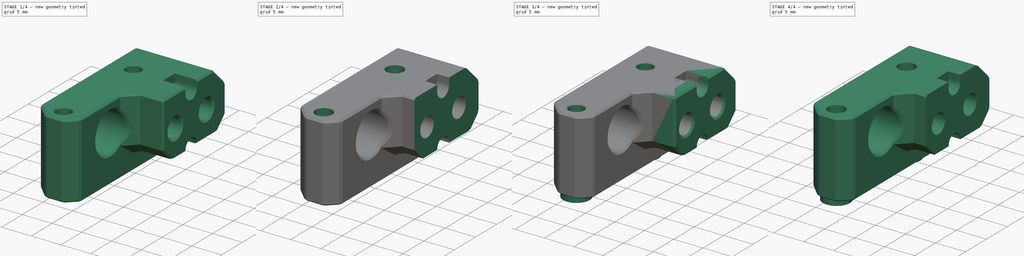
[diagram: build sequence overview — one tinted view per stage of 4, left to right]
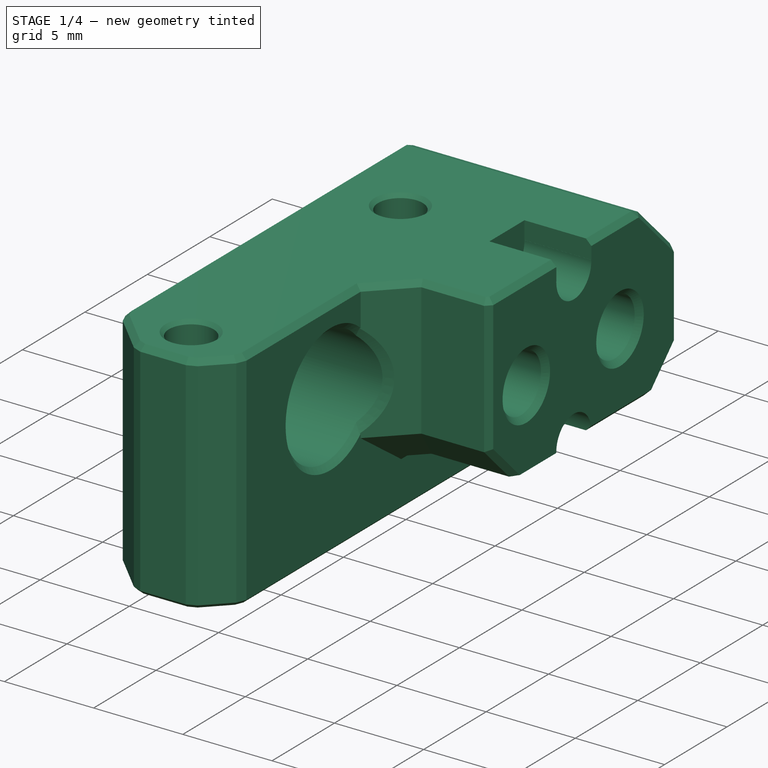
[diagram: stage 1 of 4 — iso view after this stage's code; geometry added in this stage tinted green]
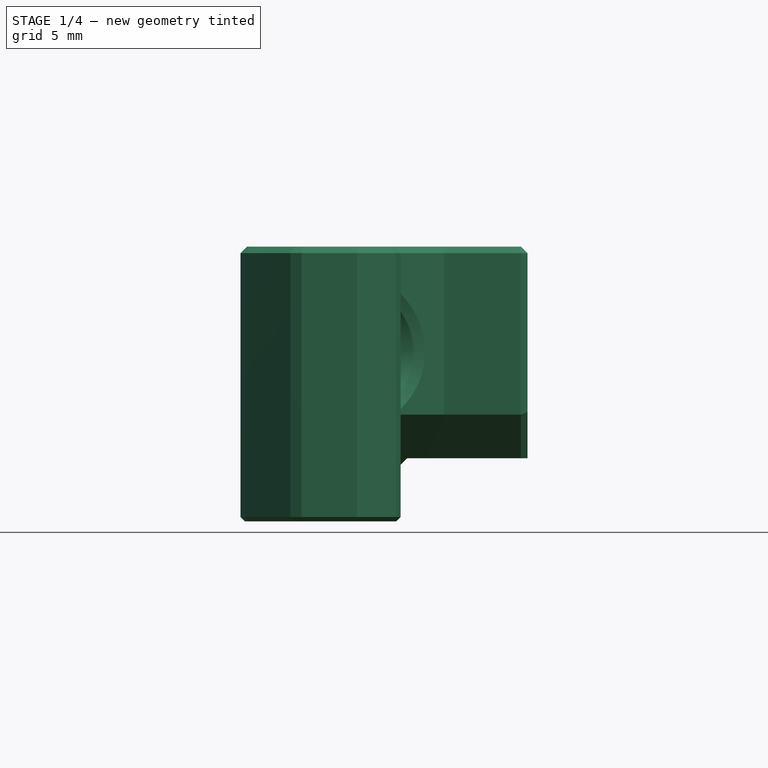
[diagram: stage 1 of 4 — front view after this stage's code; geometry added in this stage tinted green]
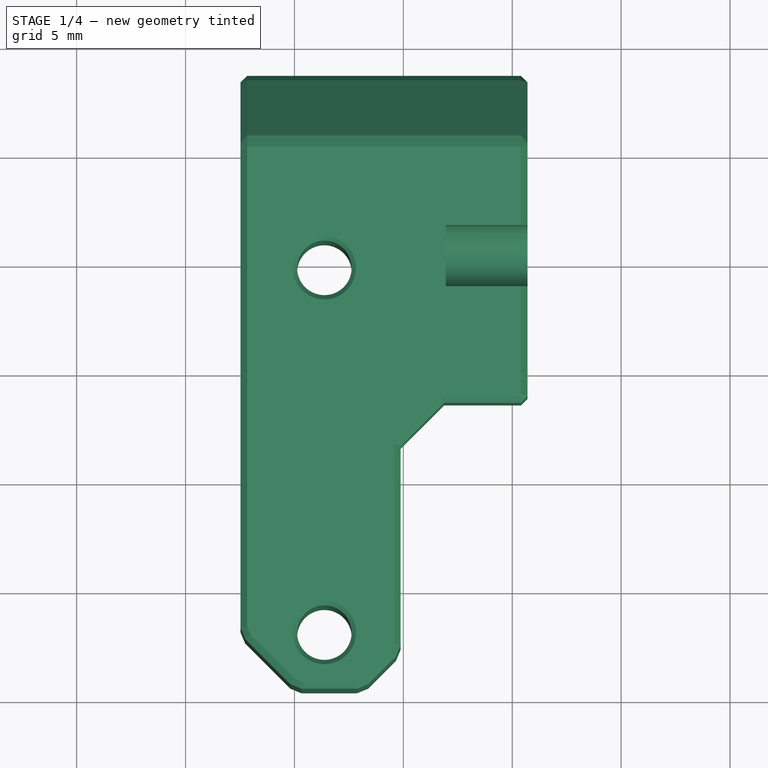
[diagram: stage 1 of 4 — top view after this stage's code; geometry added in this stage tinted green]
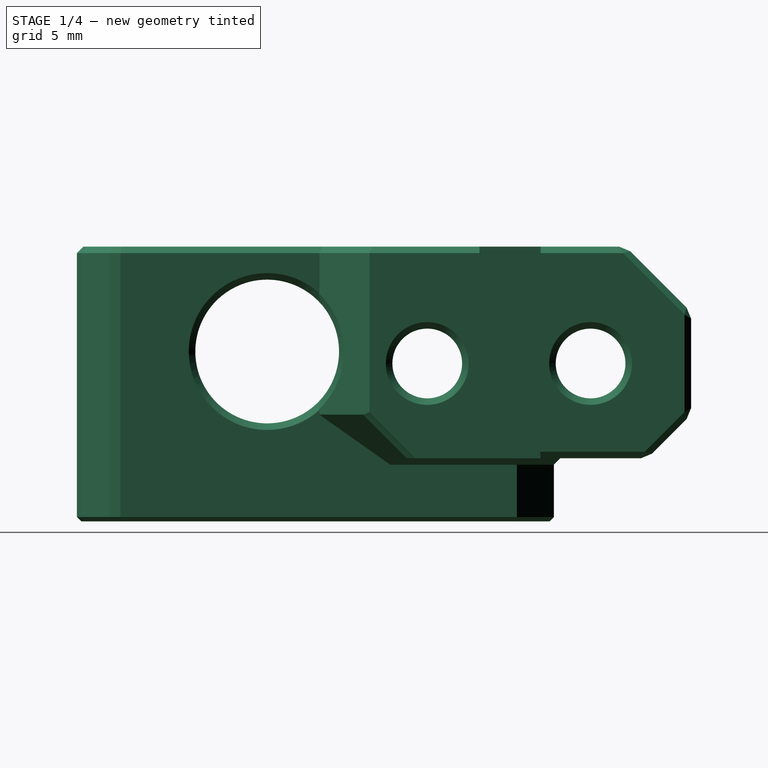
[diagram: stage 1 of 4 — right view after this stage's code; geometry added in this stage tinted green]
FCSTD DOCUMENT  (FreeCAD 1.1R40303 (Git))
Label: btt microprobe
License: All rights reserved
LicenseURL: http://en.wikipedia.org/wiki/All_rights_reserved
objects: Sketcher::SketchObject×7, PartDesign::Pocket×6, Part::Feature×2, PartDesign::FeatureBase×2, PartDesign::Plane×2, PartDesign::Body×2, App::Point×2, PartDesign::Pad×1
note: 45 computed .brp shape members not serialized (recipe doc carries the construction recipe); baked Part::Feature solids carry a one-line shape summary decoded from their .brp

FEATURE [PartDesign::Body] Body
  AllowCompound = false
  BaseFeature = -> CR_K1_C_MAX_BIQU_MicroProbe_v2_Adapter_v5_by_StarCom_Lab
  Group = -> [BaseFeature,DatumPlane,Sketch,Pocket,Sketch001,Pocket001,Sketch002,Pocket002]
  Origin = -> Origin
  Tip = -> Pocket002
FEATURE [App::Point] Origin001  label="Origin"
  Role = Origin
FEATURE [Part::Feature] CR_K1_C_MAX_BIQU_MicroProbe_v2_Adapter_v5_by_StarCom_Lab001
  shape: bbox 13.19 x 28.21 x 12.63 mm, 112 faces (baked)
FEATURE [PartDesign::FeatureBase] BaseFeature001
  BaseFeature = -> CR_K1_C_MAX_BIQU_MicroProbe_v2_Adapter_v5_by_StarCom_Lab001
  Suppressed = false
FEATURE [PartDesign::Plane] DatumPlane001
  AttachmentSupport = -> [BaseFeature001]
  Length = 78.5067
  MapMode = 5
  Placement = pos=(-24.3,0,-3.67e-14) rot=(0.57735,0.57735,0.57735;2.0944rad)
  ResizeMode = 0
  Width = 434.823
FEATURE [App::Point] Origin003
  Role = Origin
FEATURE [Sketcher::SketchObject] Sketch004
  ArcFitTolerance = 0
  AttachmentSupport = -> [DatumPlane001]
  ExternalGeometry = -> [BaseFeature001]
  ExternalTypes = [0]
  FullyConstrained = false
  MakeInternals = false
  MapMode = 5
  Placement = pos=(-24.3,0,-3.67e-14) rot=(0.57735,0.57735,0.57735;2.0944rad)
  sketch-geometry (6):
    g0: ArcOfCircle CenterX=-4.7 CenterY=380.25 CenterZ=0 NormalX=0 NormalY=0 NormalZ=1 AngleXU=0 Radius=1.4 StartAngle=3.09433 EndAngle=6.33045
    g1: Circle CenterX=-4.7 CenterY=371.65 CenterZ=0 NormalX=0 NormalY=0 NormalZ=1 AngleXU=0 Radius=1.4
    g2: LineSegment StartX=-3.30156 StartY=380.316 StartZ=0 EndX=-3.29661 EndY=380.316 EndZ=0
    g3: LineSegment StartX=-3.29661 StartY=380.316 StartZ=0 EndX=-3.29661 EndY=381.754 EndZ=0
    g4: LineSegment StartX=-3.29661 StartY=381.754 StartZ=0 EndX=-6.09844 EndY=381.754 EndZ=0
    g5: LineSegment StartX=-6.09844 StartY=381.754 StartZ=0 EndX=-6.09844 EndY=380.316 EndZ=0
  constraints (12):
    c: Tangent(g1,g-4) = -1.5708
    c: Coincident(g2,g3)
    c: Coincident(g3,g4)
    c: Coincident(g4,g5)
    c: Horizontal(g2)
    c: Horizontal(g4)
    c: Vertical(g3)
    c: Vertical(g5)
    c: Coincident(g5,g-3)
    c: Tangent(g0,g-3) = -1.5708
    c: Coincident(g0,g5)
    c: PointOnObject(g2,g-3)
FEATURE [PartDesign::Pocket] Pocket003
  BaseFeature = -> BaseFeature001
  Direction = (-1,0,-1.3e-15)
  Length = 3.75
  Length2 = 5
  Profile = -> Sketch004
  ReferenceAxis = -> Sketch004 [N_Axis]
  Suppressed = false
  Type = 0
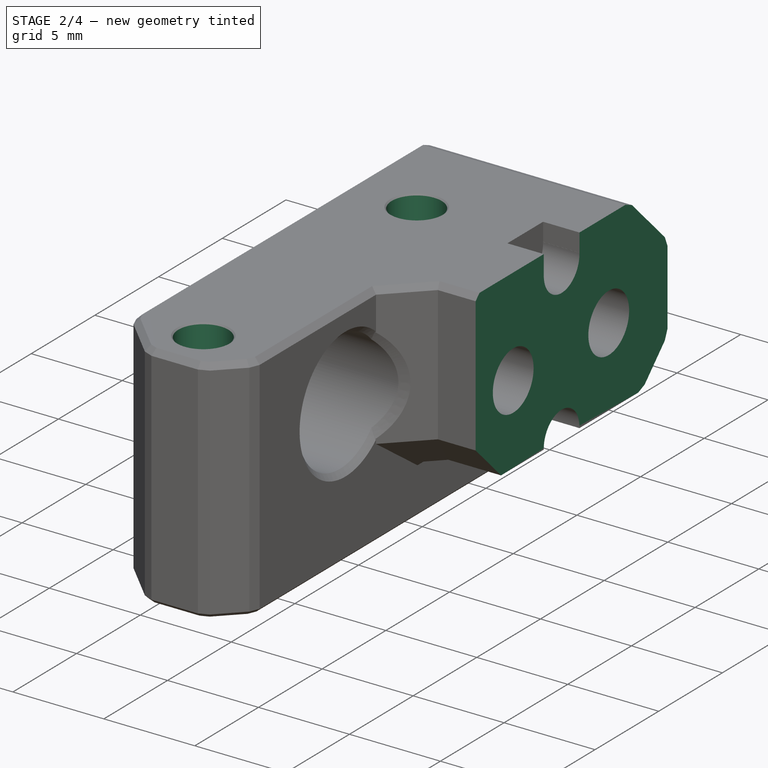
[diagram: stage 2 of 4 — iso view after this stage's code; geometry added in this stage tinted green]
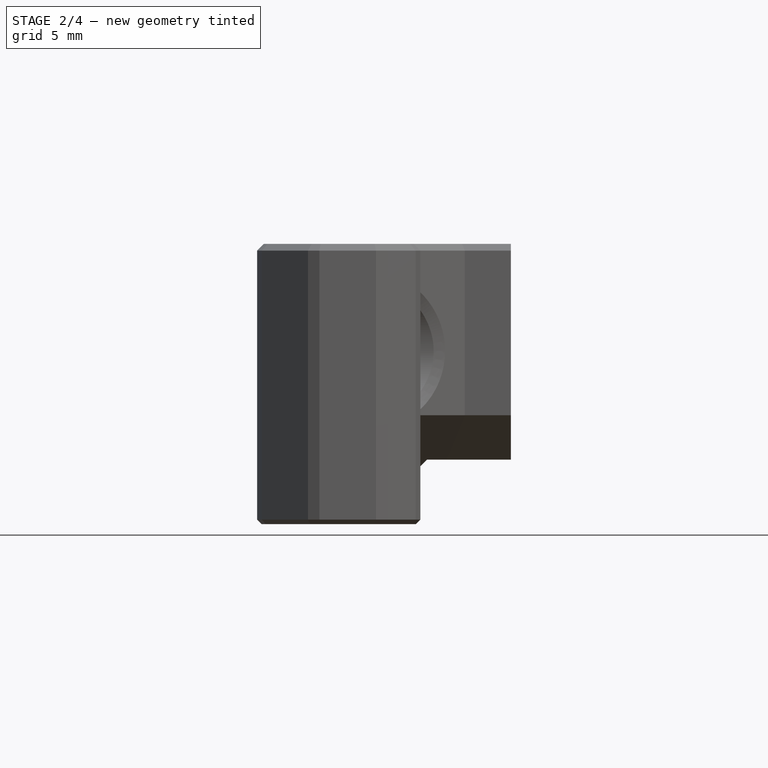
[diagram: stage 2 of 4 — front view after this stage's code; geometry added in this stage tinted green]
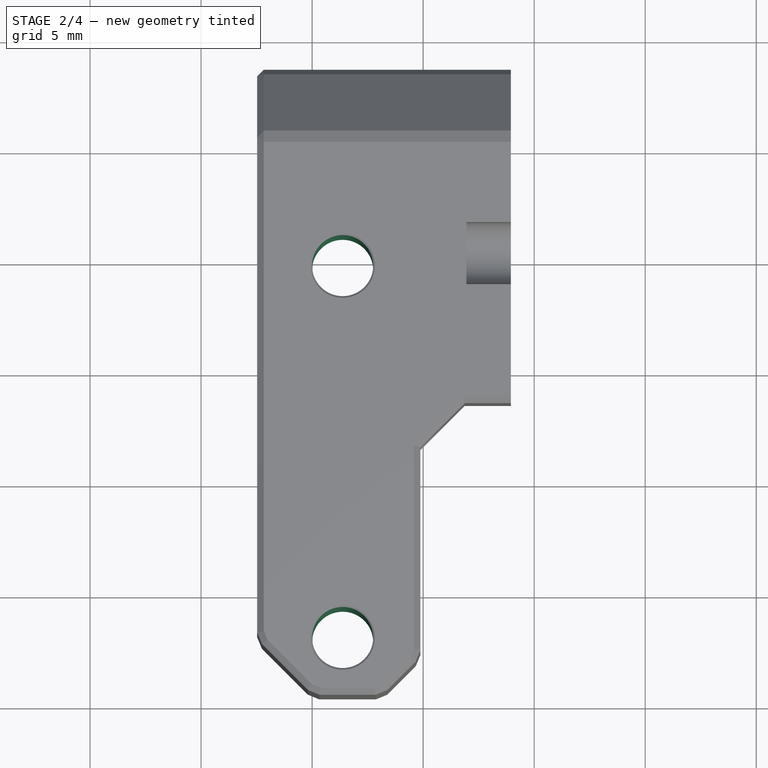
[diagram: stage 2 of 4 — top view after this stage's code; geometry added in this stage tinted green]
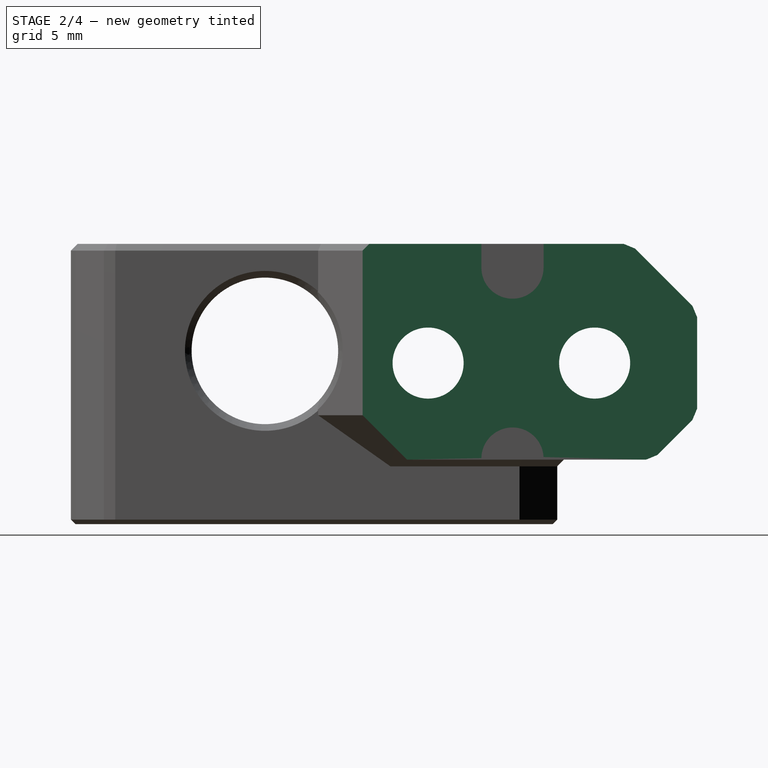
[diagram: stage 2 of 4 — right view after this stage's code; geometry added in this stage tinted green]
FEATURE [Sketcher::SketchObject] Sketch005
  ArcFitTolerance = 0
  AttachmentSupport = -> [Pocket003]
  ExternalGeometry = -> [Pocket003]
  ExternalTypes = [0]
  FullyConstrained = true
  MakeInternals = false
  MapMode = 5
  Placement = pos=(0,1.0139e-12,368.7) rot=(1,0,0;3.14159rad)
  sketch-geometry (2):
    g0: Circle CenterX=-33.6247 CenterY=5.26071 CenterZ=0 NormalX=0 NormalY=0 NormalZ=1 AngleXU=0 Radius=1.375
    g1: Circle CenterX=-33.6247 CenterY=22.0107 CenterZ=0 NormalX=0 NormalY=0 NormalZ=1 AngleXU=0 Radius=1.375
  constraints (4):
    c: Coincident(g0,g-4)
    c: Coincident(g1,g-3)
    c: Equal(g1,g0)
    c: Diameter(g1) = 2.75
FEATURE [PartDesign::Pocket] Pocket004
  BaseFeature = -> Pocket003
  Direction = (0,2.8e-15,1)
  Length = 0.5
  Length2 = 5
  Profile = -> Sketch005
  ReferenceAxis = -> Sketch005 [N_Axis]
  Suppressed = false
  Type = 1
FEATURE [Sketcher::SketchObject] Sketch006
  ArcFitTolerance = 0
  AttachmentSupport = -> [Pocket004]
  ExternalTypes = [0]
  FullyConstrained = false
  MakeInternals = false
  MapMode = 5
  Placement = pos=(-24.3,0,-3.67e-14) rot=(0.57735,0.57735,0.57735;2.0944rad)
  sketch-geometry (4):
    g0: LineSegment StartX=-14.4128 StartY=382.015 StartZ=0 EndX=-14.4128 EndY=369.818 EndZ=0
    g1: LineSegment StartX=-14.4128 StartY=369.818 StartZ=0 EndX=5.4014 EndY=369.818 EndZ=0
    g2: LineSegment StartX=5.4014 StartY=369.818 StartZ=0 EndX=5.4014 EndY=382.015 EndZ=0
    g3: LineSegment StartX=5.4014 StartY=382.015 StartZ=0 EndX=-14.4128 EndY=382.015 EndZ=0
  constraints (8):
    c: Coincident(g0,g1)
    c: Coincident(g1,g2)
    c: Coincident(g2,g3)
    c: Coincident(g3,g0)
    c: Vertical(g0)
    c: Vertical(g2)
    c: Horizontal(g1)
    c: Horizontal(g3)
FEATURE [PartDesign::Pocket] Pocket005
  BaseFeature = -> Pocket004
  Direction = (-1,-1e-16,-1.4e-15)
  Length = 1.75
  Length2 = 5
  Profile = -> Sketch006
  ReferenceAxis = -> Sketch006 [N_Axis]
  Suppressed = false
  Type = 0
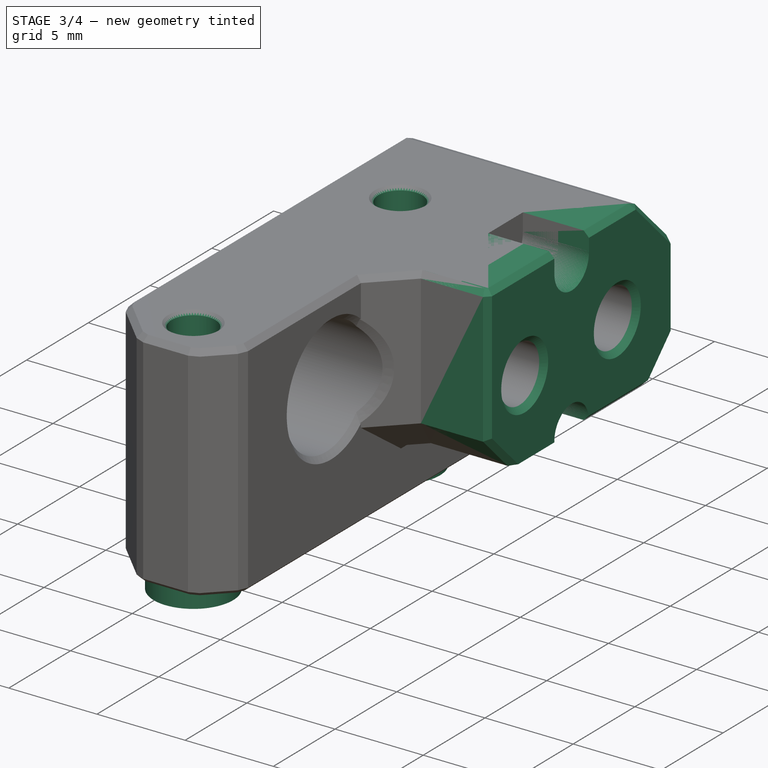
[diagram: stage 3 of 4 — iso view after this stage's code; geometry added in this stage tinted green]
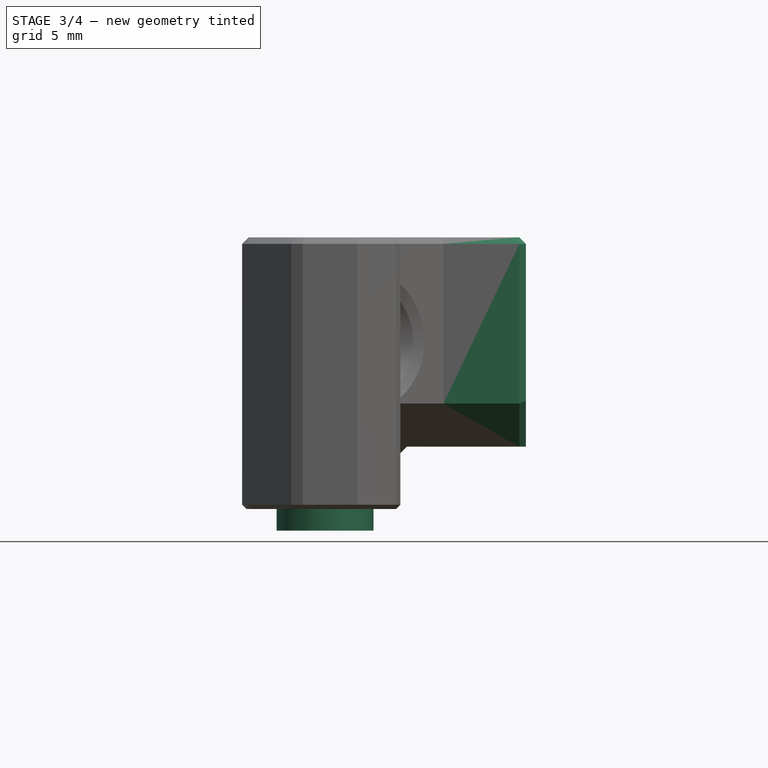
[diagram: stage 3 of 4 — front view after this stage's code; geometry added in this stage tinted green]
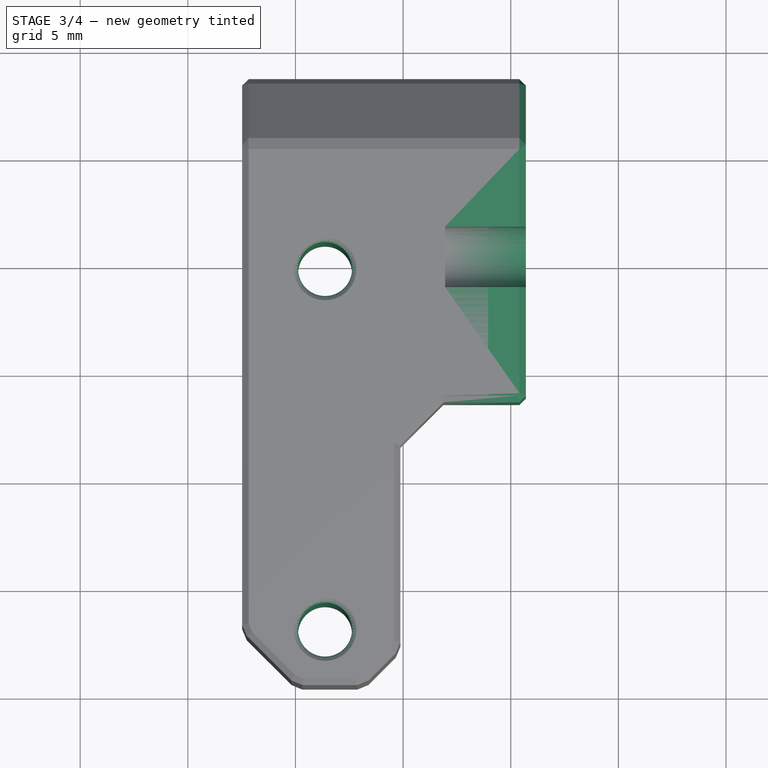
[diagram: stage 3 of 4 — top view after this stage's code; geometry added in this stage tinted green]
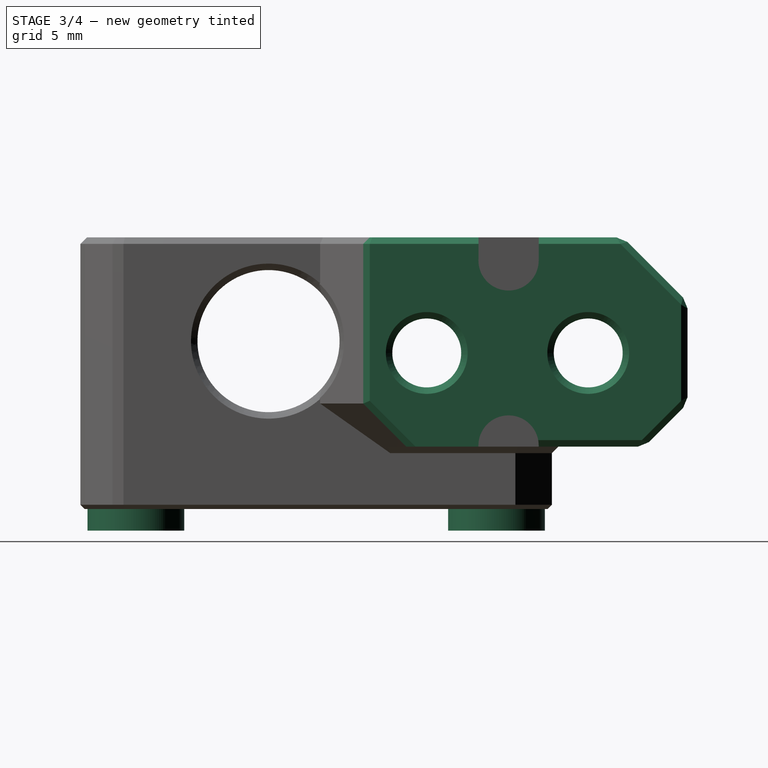
[diagram: stage 3 of 4 — right view after this stage's code; geometry added in this stage tinted green]
FEATURE [Part::Feature] CR_K1_C_MAX_BIQU_MicroProbe_v2_Adapter_v5_by_StarCom_Lab
  shape: bbox 13.19 x 28.21 x 12.63 mm, 112 faces (baked)
FEATURE [PartDesign::FeatureBase] BaseFeature
  BaseFeature = -> CR_K1_C_MAX_BIQU_MicroProbe_v2_Adapter_v5_by_StarCom_Lab
  Suppressed = false
FEATURE [PartDesign::Plane] DatumPlane
  AttachmentSupport = -> [BaseFeature]
  Length = 78.5067
  MapMode = 5
  Placement = pos=(-24.3,0,-3.67e-14) rot=(0.57735,0.57735,0.57735;2.0944rad)
  ResizeMode = 0
  Width = 434.823
FEATURE [Sketcher::SketchObject] Sketch
  ArcFitTolerance = 0
  AttachmentSupport = -> [DatumPlane]
  ExternalGeometry = -> [BaseFeature]
  ExternalTypes = [0]
  FullyConstrained = false
  MakeInternals = false
  MapMode = 5
  Placement = pos=(-24.3,0,-3.67e-14) rot=(0.57735,0.57735,0.57735;2.0944rad)
  sketch-geometry (6):
    g0: ArcOfCircle CenterX=-4.7 CenterY=380.25 CenterZ=0 NormalX=0 NormalY=0 NormalZ=1 AngleXU=0 Radius=1.4 StartAngle=3.09433 EndAngle=6.33045
    g1: Circle CenterX=-4.7 CenterY=371.65 CenterZ=0 NormalX=0 NormalY=0 NormalZ=1 AngleXU=0 Radius=1.4
    g2: LineSegment StartX=-3.30156 StartY=380.316 StartZ=0 EndX=-3.29661 EndY=380.316 EndZ=0
    g3: LineSegment StartX=-3.29661 StartY=380.316 StartZ=0 EndX=-3.29661 EndY=381.754 EndZ=0
    g4: LineSegment StartX=-3.29661 StartY=381.754 StartZ=0 EndX=-6.09844 EndY=381.754 EndZ=0
    g5: LineSegment StartX=-6.09844 StartY=381.754 StartZ=0 EndX=-6.09844 EndY=380.316 EndZ=0
  constraints (12):
    c: Tangent(g1,g-4) = -1.5708
    c: Coincident(g2,g3)
    c: Coincident(g3,g4)
    c: Coincident(g4,g5)
    c: Horizontal(g2)
    c: Horizontal(g4)
    c: Vertical(g3)
    c: Vertical(g5)
    c: Coincident(g5,g-3)
    c: Tangent(g0,g-3) = -1.5708
    c: Coincident(g0,g5)
    c: PointOnObject(g2,g-3)
FEATURE [PartDesign::Pocket] Pocket
  BaseFeature = -> BaseFeature
  Direction = (-1,0,-1.3e-15)
  Length = 3.75
  Length2 = 5
  Profile = -> Sketch
  ReferenceAxis = -> Sketch [N_Axis]
  Suppressed = false
  Type = 0
FEATURE [Sketcher::SketchObject] Sketch007
  ArcFitTolerance = 1e-06
  AttachmentSupport = -> [Pocket005]
  ExternalGeometry = -> [Pocket005]
  ExternalTypes = [0,0]
  FullyConstrained = true
  MakeInternals = false
  MapMode = 5
  Placement = pos=(0,1.0139e-12,368.7) rot=(1,0,0;3.14159rad)
  sketch-geometry (4):
    g0: Circle CenterX=-33.6247 CenterY=22.0107 CenterZ=0 NormalX=0 NormalY=0 NormalZ=1 AngleXU=0 Radius=2.25
    g1: Circle CenterX=-33.6247 CenterY=5.26071 CenterZ=0 NormalX=0 NormalY=0 NormalZ=1 AngleXU=0 Radius=2.25
    g2: Circle CenterX=-33.6247 CenterY=22.0107 CenterZ=0 NormalX=0 NormalY=0 NormalZ=1 AngleXU=0 Radius=1.5
    g3: Circle CenterX=-33.6247 CenterY=5.26071 CenterZ=0 NormalX=0 NormalY=0 NormalZ=1 AngleXU=0 Radius=1.5
  constraints (8):
    c: Coincident(g0,g-3)
    c: Coincident(g1,g-4)
    c: Equal(g0,g1)
    c: Diameter(g1) = 4.5
    c: Coincident(g2,g0)
    c: Coincident(g3,g1)
    c: Equal(g3,g2)
    c: Diameter(g2) = 3
FEATURE [PartDesign::Pad] Pad001
  BaseFeature = -> Pocket005
  Direction = (0,-2.8e-15,-1)
  Length = 1
  Length2 = 10
  Profile = -> Sketch007
  ReferenceAxis = -> Sketch007 [N_Axis]
  Suppressed = false
  Type = 0
FEATURE [PartDesign::Body] Body001  label="OTMount"
  AllowCompound = false
  BaseFeature = -> CR_K1_C_MAX_BIQU_MicroProbe_v2_Adapter_v5_by_StarCom_Lab001
  Group = -> [BaseFeature001,DatumPlane001,Sketch004,Pocket003,Sketch005,Pocket004,Sketch006,Pocket005,Sketch007,Pad001]
  Origin = -> Origin002
  Tip = -> Pad001
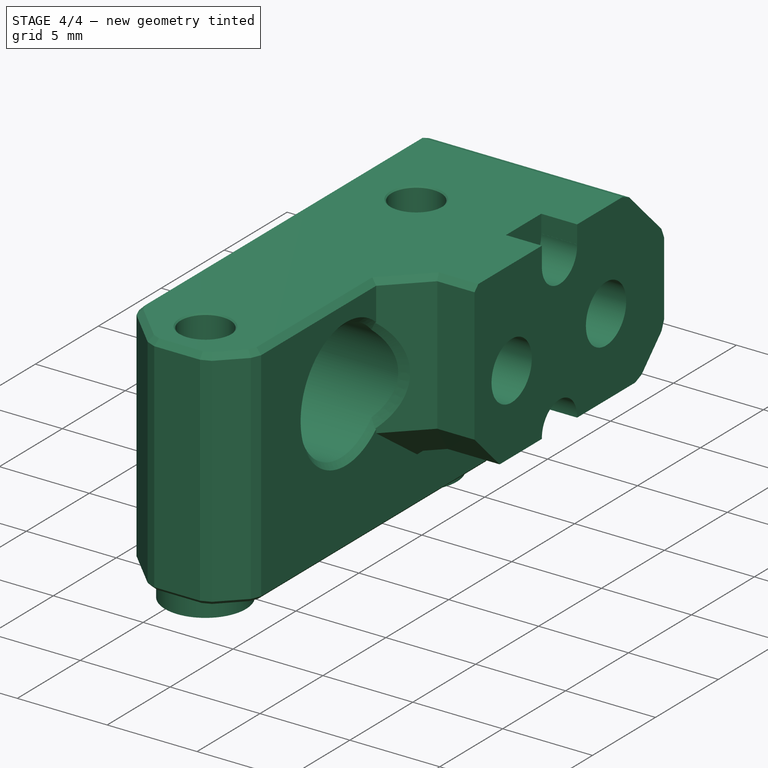
[diagram: stage 4 of 4 — iso view after this stage's code; geometry added in this stage tinted green]
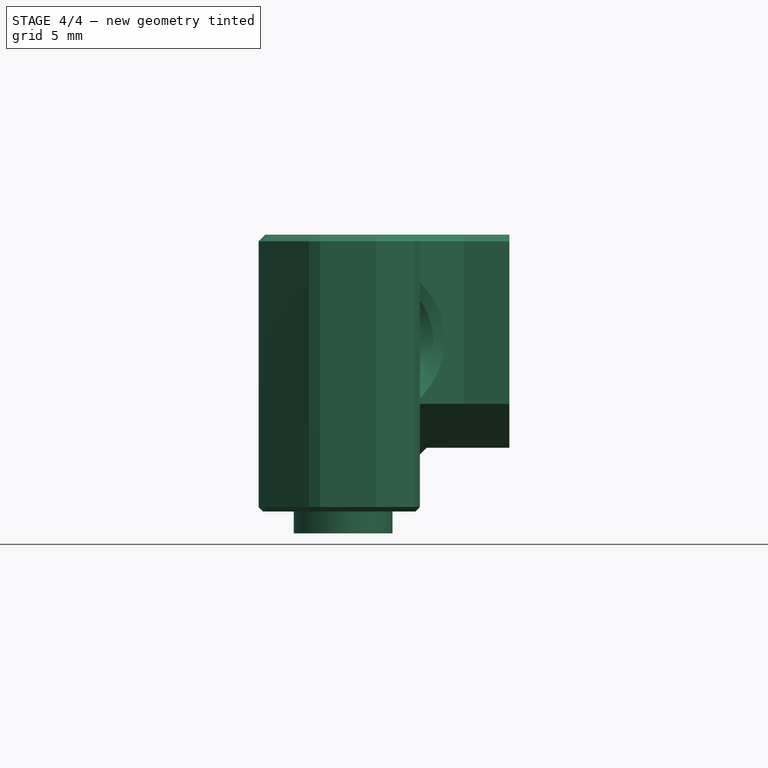
[diagram: stage 4 of 4 — front view after this stage's code; geometry added in this stage tinted green]
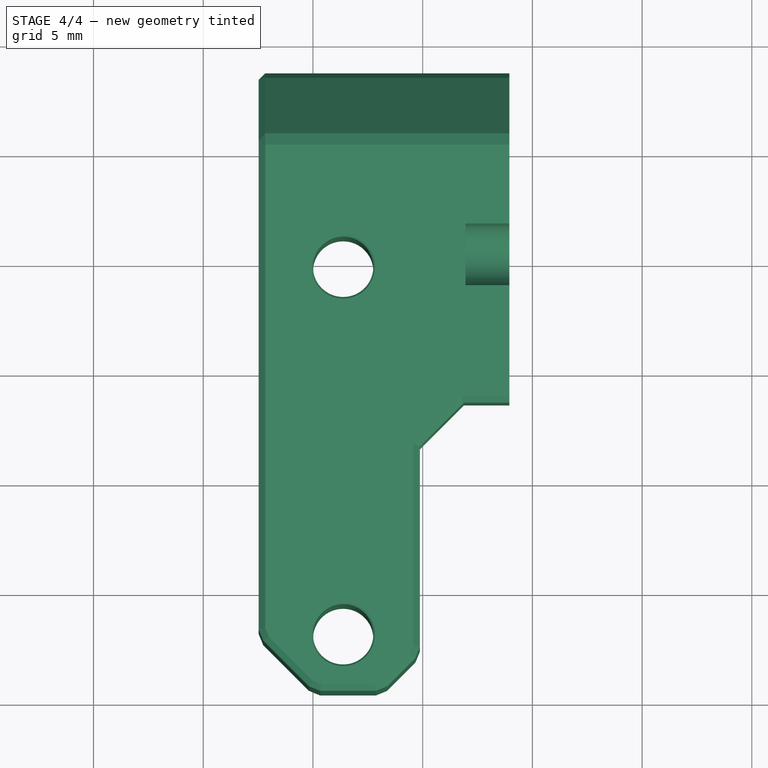
[diagram: stage 4 of 4 — top view after this stage's code; geometry added in this stage tinted green]
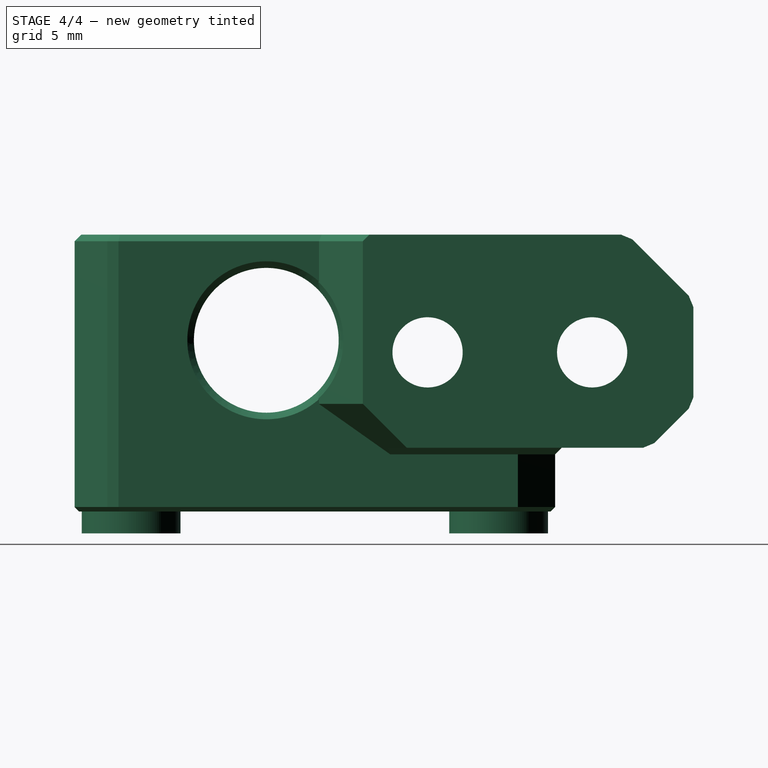
[diagram: stage 4 of 4 — right view after this stage's code; geometry added in this stage tinted green]
FEATURE [Sketcher::SketchObject] Sketch001
  ArcFitTolerance = 0
  AttachmentSupport = -> [Pocket]
  ExternalGeometry = -> [Pocket]
  ExternalTypes = [0]
  FullyConstrained = true
  MakeInternals = false
  MapMode = 5
  Placement = pos=(0,1.0139e-12,368.7) rot=(1,0,0;3.14159rad)
  sketch-geometry (2):
    g0: Circle CenterX=-33.6247 CenterY=5.26071 CenterZ=0 NormalX=0 NormalY=0 NormalZ=1 AngleXU=0 Radius=1.375
    g1: Circle CenterX=-33.6247 CenterY=22.0107 CenterZ=0 NormalX=0 NormalY=0 NormalZ=1 AngleXU=0 Radius=1.375
  constraints (4):
    c: Coincident(g0,g-4)
    c: Coincident(g1,g-3)
    c: Equal(g1,g0)
    c: Diameter(g1) = 2.75
FEATURE [PartDesign::Pocket] Pocket001
  BaseFeature = -> Pocket
  Direction = (0,2.8e-15,1)
  Length = 0.5
  Length2 = 5
  Profile = -> Sketch001
  ReferenceAxis = -> Sketch001 [N_Axis]
  Suppressed = false
  Type = 1
FEATURE [Sketcher::SketchObject] Sketch002
  ArcFitTolerance = 0
  AttachmentSupport = -> [Pocket001]
  ExternalTypes = [0]
  FullyConstrained = false
  MakeInternals = false
  MapMode = 5
  Placement = pos=(-24.3,0,-3.67e-14) rot=(0.57735,0.57735,0.57735;2.0944rad)
  sketch-geometry (4):
    g0: LineSegment StartX=-14.4128 StartY=382.015 StartZ=0 EndX=-14.4128 EndY=369.818 EndZ=0
    g1: LineSegment StartX=-14.4128 StartY=369.818 StartZ=0 EndX=5.4014 EndY=369.818 EndZ=0
    g2: LineSegment StartX=5.4014 StartY=369.818 StartZ=0 EndX=5.4014 EndY=382.015 EndZ=0
    g3: LineSegment StartX=5.4014 StartY=382.015 StartZ=0 EndX=-14.4128 EndY=382.015 EndZ=0
  constraints (8):
    c: Coincident(g0,g1)
    c: Coincident(g1,g2)
    c: Coincident(g2,g3)
    c: Coincident(g3,g0)
    c: Vertical(g0)
    c: Vertical(g2)
    c: Horizontal(g1)
    c: Horizontal(g3)
FEATURE [PartDesign::Pocket] Pocket002
  BaseFeature = -> Pocket001
  Direction = (-1,-1e-16,-1.4e-15)
  Length = 1.75
  Length2 = 5
  Profile = -> Sketch002
  ReferenceAxis = -> Sketch002 [N_Axis]
  Suppressed = false
  Type = 0
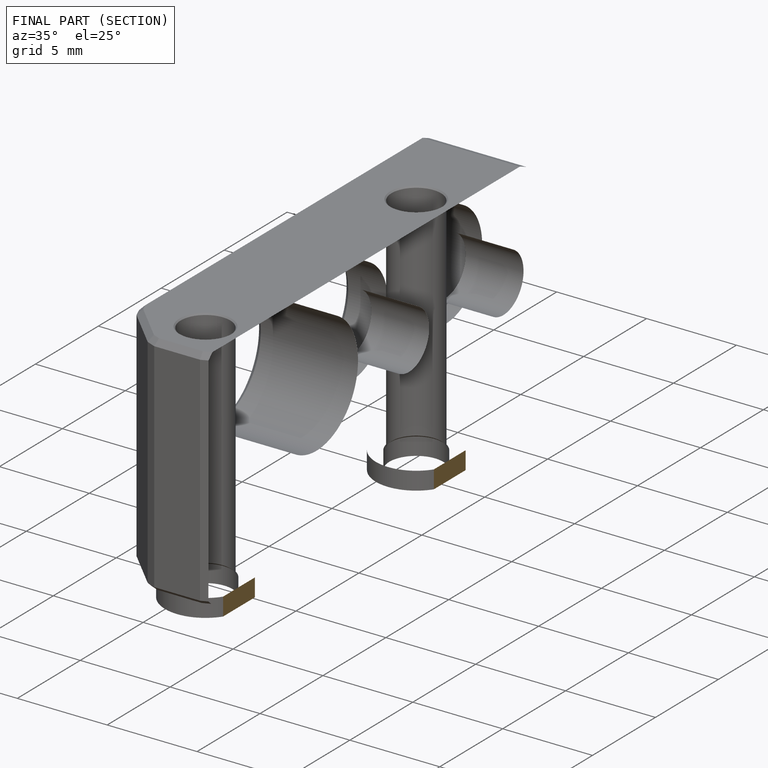
[diagram: finished part — half-section view (interior)]
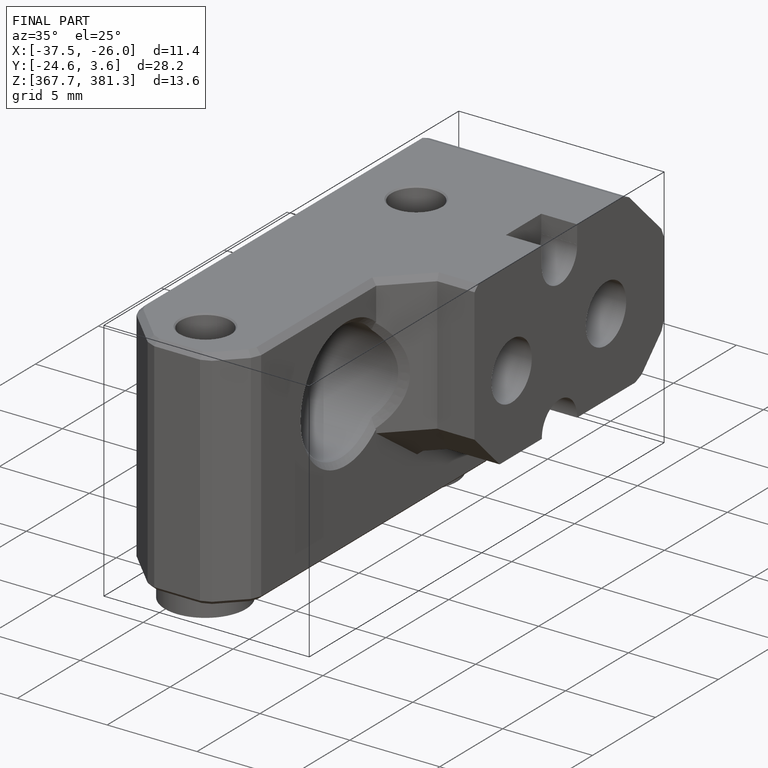
[diagram: finished part — iso view with bounding-box wireframe]
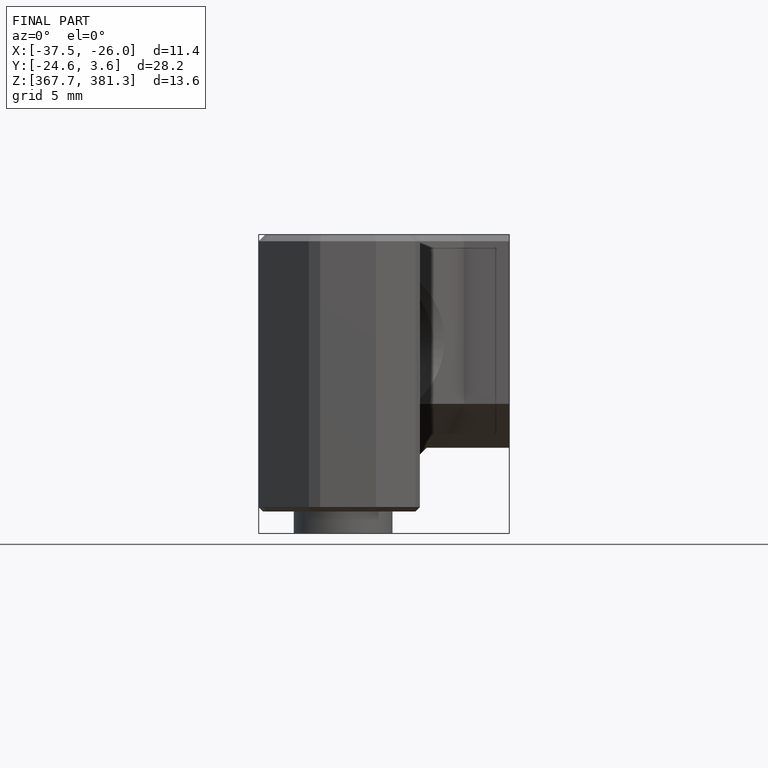
[diagram: finished part — front view with bounding-box wireframe]
